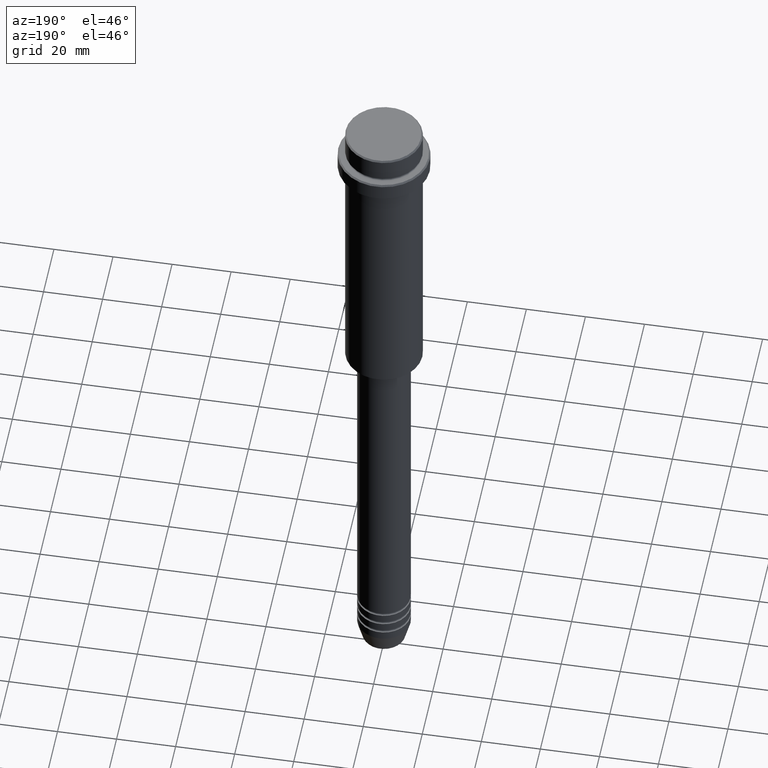
[diagram: clean part render]
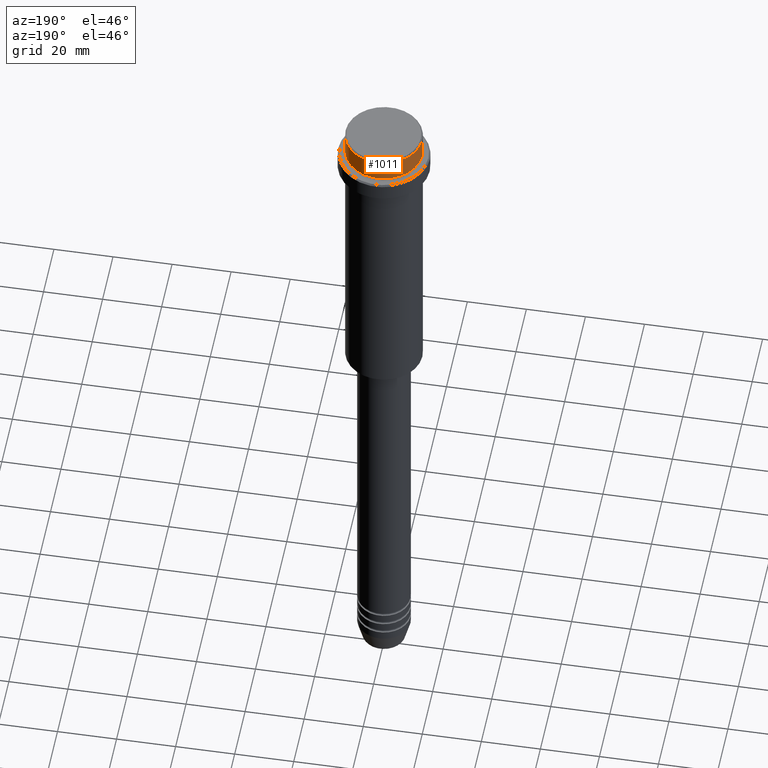
[diagram: same view with one face highlighted and labeled with its STEP entity id]
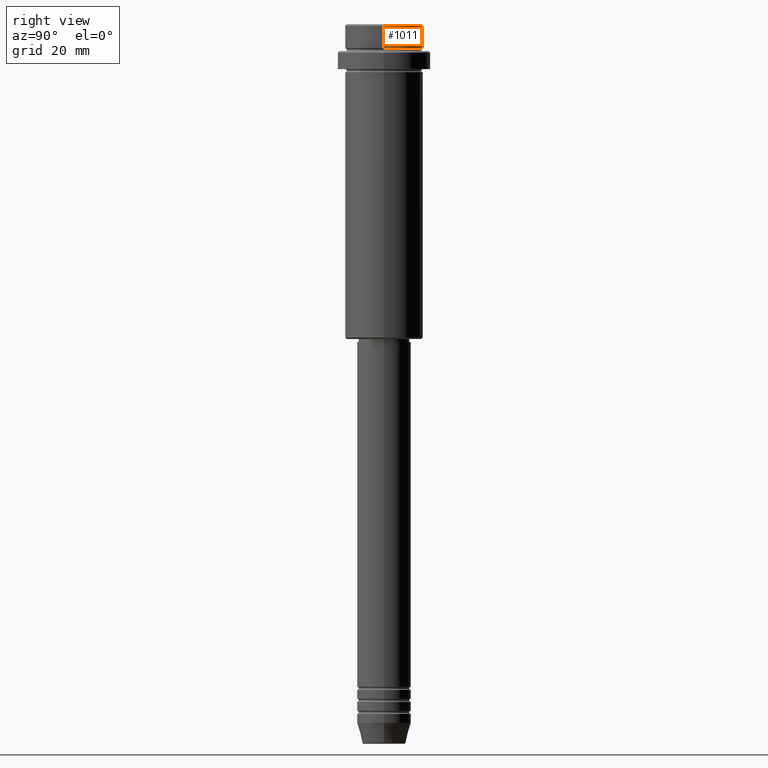
[diagram: same view with one face highlighted and labeled with its STEP entity id]
A machine part, auxiliary view. The second image highlights one B-rep face of the part: STEP entity #1011.
A second angle (right view) of the same face is appended — the face is thin or edge-on in the first view.
In plain terms, the highlighted cylindrical surface (partial cylindrical patch) has radius 13 mm, axis along (-0, -0, 1).
Its self-contained STEP definition (entity closure, byte-faithful):
#12 = VECTOR ( 'NONE', #474, 1000.000000000000000 ) ;
#39 = DIRECTION ( 'NONE',  ( -0.000000000000000000, -0.000000000000000000, 1.000000000000000000 ) ) ;
#123 = EDGE_CURVE ( 'NONE', #393, #1195, #683, .T. ) ;
#169 = FACE_OUTER_BOUND ( 'NONE', #1256, .T. ) ;
#227 = DIRECTION ( 'NONE',  ( 1.000000000000000000, 0.000000000000000000, 0.000000000000000000 ) ) ;
#276 = EDGE_CURVE ( 'NONE', #292, #616, #284, .T. ) ;
#284 = CIRCLE ( 'NONE', #440, 12.99999999999999822 ) ;
#292 = VERTEX_POINT ( 'NONE', #1338 ) ;
#390 = ORIENTED_EDGE ( 'NONE', *, *, #123, .T. ) ;
#393 = VERTEX_POINT ( 'NONE', #441 ) ;
#411 = ORIENTED_EDGE ( 'NONE', *, *, #887, .F. ) ;
#440 = AXIS2_PLACEMENT_3D ( 'NONE', #760, #885, #227 ) ;
#441 = CARTESIAN_POINT ( 'NONE',  ( 12.99999999999999822, 0.000000000000000000, -7.999999999999998224 ) ) ;
#474 = DIRECTION ( 'NONE',  ( -0.000000000000000000, -0.000000000000000000, 1.000000000000000000 ) ) ;
#499 = CARTESIAN_POINT ( 'NONE',  ( 0.000000000000000000, 0.000000000000000000, 0.000000000000000000 ) ) ;
#616 = VERTEX_POINT ( 'NONE', #688 ) ;
#683 = CIRCLE ( 'NONE', #1199, 12.99999999999999822 ) ;
#688 = CARTESIAN_POINT ( 'NONE',  ( 12.99999999999999822, 0.000000000000000000, -0.4999999999999483746 ) ) ;
#741 = VECTOR ( 'NONE', #39, 1000.000000000000000 ) ;
#760 = CARTESIAN_POINT ( 'NONE',  ( 0.000000000000000000, 0.000000000000000000, -0.4999999999999483746 ) ) ;
#837 = DIRECTION ( 'NONE',  ( 1.000000000000000000, 0.000000000000000000, 0.000000000000000000 ) ) ;
#885 = DIRECTION ( 'NONE',  ( 0.000000000000000000, 0.000000000000000000, -1.000000000000000000 ) ) ;
#887 = EDGE_CURVE ( 'NONE', #393, #616, #1391, .T. ) ;
#912 = DIRECTION ( 'NONE',  ( -0.000000000000000000, -0.000000000000000000, 1.000000000000000000 ) ) ;
#919 = DIRECTION ( 'NONE',  ( -0.000000000000000000, -0.000000000000000000, 1.000000000000000000 ) ) ;
#981 = CARTESIAN_POINT ( 'NONE',  ( 12.99999999999999822, 0.000000000000000000, 0.000000000000000000 ) ) ;
#984 = EDGE_CURVE ( 'NONE', #1195, #292, #1124, .T. ) ;
#998 = ORIENTED_EDGE ( 'NONE', *, *, #276, .T. ) ;
#1011 = ADVANCED_FACE ( 'NONE', ( #169 ), #1386, .T. ) ;
#1023 = CARTESIAN_POINT ( 'NONE',  ( -12.99999999999999822, 1.592040838891558898E-15, 0.000000000000000000 ) ) ;
#1024 = CARTESIAN_POINT ( 'NONE',  ( 0.000000000000000000, 0.000000000000000000, -7.999999999999998224 ) ) ;
#1040 = AXIS2_PLACEMENT_3D ( 'NONE', #499, #919, #837 ) ;
#1124 = LINE ( 'NONE', #1023, #741 ) ;
#1132 = ORIENTED_EDGE ( 'NONE', *, *, #984, .T. ) ;
#1195 = VERTEX_POINT ( 'NONE', #1196 ) ;
#1196 = CARTESIAN_POINT ( 'NONE',  ( -12.99999999999999822, 1.592040838891558898E-15, -7.999999999999998224 ) ) ;
#1199 = AXIS2_PLACEMENT_3D ( 'NONE', #1024, #912, #1354 ) ;
#1256 = EDGE_LOOP ( 'NONE', ( #390, #1132, #998, #411 ) ) ;
#1338 = CARTESIAN_POINT ( 'NONE',  ( -12.99999999999999822, 1.592040838891558898E-15, -0.4999999999999483746 ) ) ;
#1354 = DIRECTION ( 'NONE',  ( 1.000000000000000000, 0.000000000000000000, 0.000000000000000000 ) ) ;
#1386 = CYLINDRICAL_SURFACE ( 'NONE', #1040, 12.99999999999999822 ) ;
#1391 = LINE ( 'NONE', #981, #12 ) ;